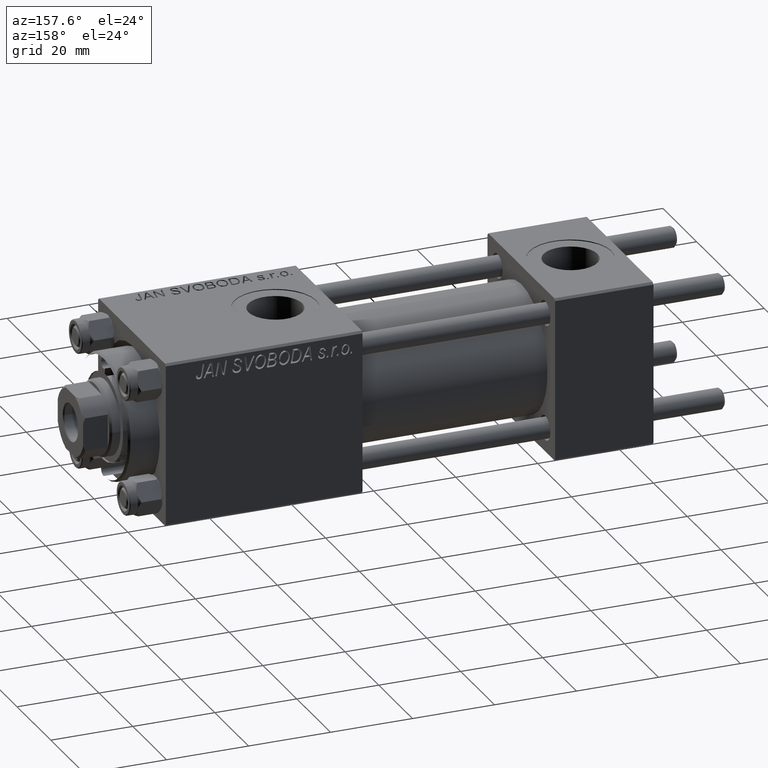
[diagram: clean part render]
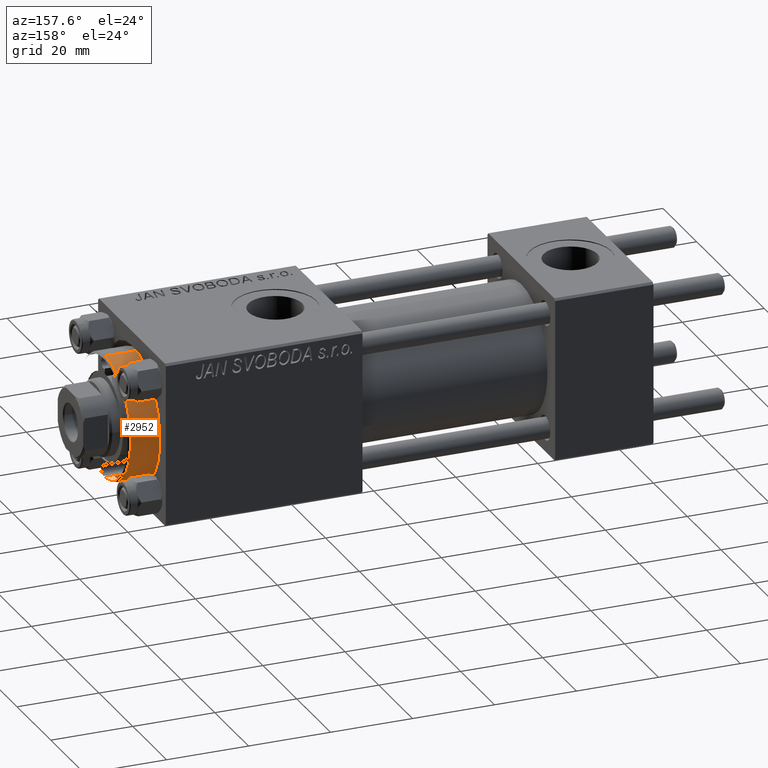
[diagram: same view with one face highlighted and labeled with its STEP entity id]
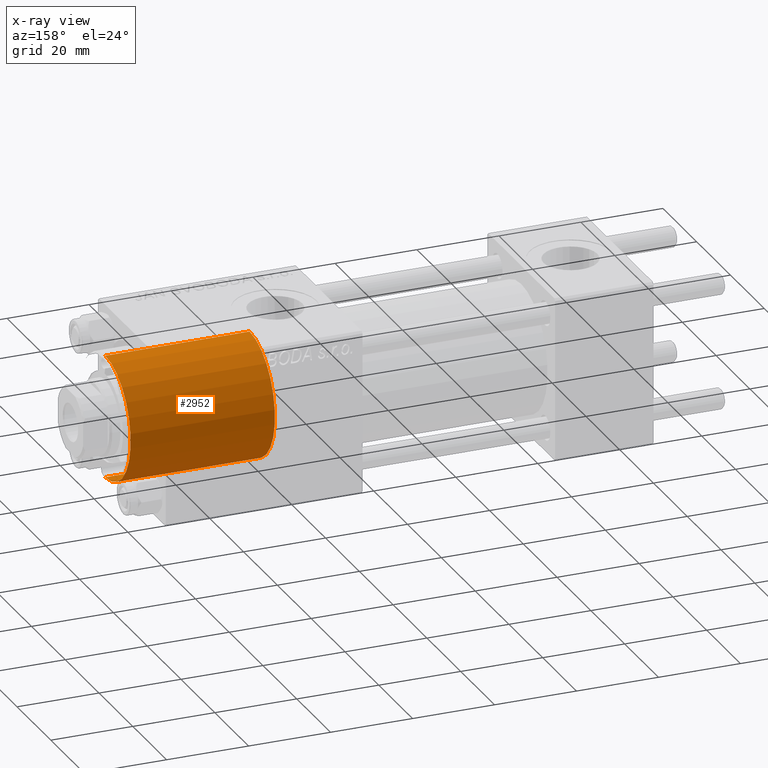
[diagram: x-ray of the same camera — body ghosted, the highlighted face saturated]
A machine part, auxiliary view. The second image highlights one B-rep face of the part: STEP entity #2952.
The next image is the same camera in x-ray: the body ghosted, the highlighted face saturated — about 0% of this face is hidden behind the body in this view.
In plain terms, the highlighted cylindrical surface (partial cylindrical patch) has radius 15 mm, axis along (-1, -0, 0).
Its self-contained STEP definition (entity closure, byte-faithful):
#2800 = DIRECTION ( 'NONE',  ( -1.000000000000000000, 0.000000000000000000, 0.000000000000000000 ) ) ;
#2944 = VERTEX_POINT ( 'NONE', #31485 ) ;
#2952 = ADVANCED_FACE ( 'NONE', ( #27311 ), #47373, .T. ) ;
#3740 = EDGE_CURVE ( 'NONE', #2944, #26713, #8091, .T. ) ;
#3931 = CARTESIAN_POINT ( 'NONE',  ( 0.000000000000000000, 0.000000000000000000, 0.000000000000000000 ) ) ;
#8091 = LINE ( 'NONE', #43775, #16235 ) ;
#8124 = CARTESIAN_POINT ( 'NONE',  ( 0.000000000000000000, 0.000000000000000000, 35.19999999999999574 ) ) ;
#9299 = CIRCLE ( 'NONE', #24181, 15.00000000000000000 ) ;
#9352 = VERTEX_POINT ( 'NONE', #33167 ) ;
#9881 = VERTEX_POINT ( 'NONE', #12169 ) ;
#12169 = CARTESIAN_POINT ( 'NONE',  ( -15.00000000000000000, 0.000000000000000000, 0.000000000000000000 ) ) ;
#12290 = DIRECTION ( 'NONE',  ( 0.000000000000000000, 0.000000000000000000, -1.000000000000000000 ) ) ;
#13123 = DIRECTION ( 'NONE',  ( -0.000000000000000000, -0.000000000000000000, -1.000000000000000000 ) ) ;
#13944 = CARTESIAN_POINT ( 'NONE',  ( 15.00000000000000000, 1.836970198721029589E-15, 0.000000000000000000 ) ) ;
#14932 = EDGE_CURVE ( 'NONE', #9352, #9881, #33436, .T. ) ;
#15059 = CARTESIAN_POINT ( 'NONE',  ( 0.000000000000000000, 0.000000000000000000, 28.69999999999999929 ) ) ;
#15394 = EDGE_LOOP ( 'NONE', ( #41610, #47285, #48890, #38115 ) ) ;
#16235 = VECTOR ( 'NONE', #48209, 1000.000000000000000 ) ;
#21395 = CIRCLE ( 'NONE', #50548, 15.00000000000000000 ) ;
#23235 = DIRECTION ( 'NONE',  ( 1.000000000000000000, 0.000000000000000000, 0.000000000000000000 ) ) ;
#23951 = EDGE_CURVE ( 'NONE', #9352, #2944, #21395, .T. ) ;
#24181 = AXIS2_PLACEMENT_3D ( 'NONE', #3931, #43791, #34503 ) ;
#26713 = VERTEX_POINT ( 'NONE', #13944 ) ;
#27311 = FACE_OUTER_BOUND ( 'NONE', #15394, .T. ) ;
#28691 = AXIS2_PLACEMENT_3D ( 'NONE', #15059, #47632, #2800 ) ;
#29265 = CARTESIAN_POINT ( 'NONE',  ( -15.00000000000000000, 0.000000000000000000, 28.69999999999999929 ) ) ;
#31485 = CARTESIAN_POINT ( 'NONE',  ( 15.00000000000000000, 1.836970198721029589E-15, 35.19999999999999574 ) ) ;
#33167 = CARTESIAN_POINT ( 'NONE',  ( -15.00000000000000000, 0.000000000000000000, 35.19999999999999574 ) ) ;
#33436 = LINE ( 'NONE', #29265, #35289 ) ;
#34503 = DIRECTION ( 'NONE',  ( 1.000000000000000000, 0.000000000000000000, 0.000000000000000000 ) ) ;
#35289 = VECTOR ( 'NONE', #13123, 1000.000000000000000 ) ;
#38115 = ORIENTED_EDGE ( 'NONE', *, *, #14932, .F. ) ;
#39043 = EDGE_CURVE ( 'NONE', #26713, #9881, #9299, .T. ) ;
#41610 = ORIENTED_EDGE ( 'NONE', *, *, #23951, .T. ) ;
#43775 = CARTESIAN_POINT ( 'NONE',  ( 15.00000000000000000, 1.836970198721029589E-15, 28.69999999999999929 ) ) ;
#43791 = DIRECTION ( 'NONE',  ( 0.000000000000000000, 0.000000000000000000, 1.000000000000000000 ) ) ;
#47285 = ORIENTED_EDGE ( 'NONE', *, *, #3740, .T. ) ;
#47373 = CYLINDRICAL_SURFACE ( 'NONE', #28691, 15.00000000000000000 ) ;
#47632 = DIRECTION ( 'NONE',  ( -0.000000000000000000, -0.000000000000000000, -1.000000000000000000 ) ) ;
#48209 = DIRECTION ( 'NONE',  ( -0.000000000000000000, -0.000000000000000000, -1.000000000000000000 ) ) ;
#48890 = ORIENTED_EDGE ( 'NONE', *, *, #39043, .T. ) ;
#50548 = AXIS2_PLACEMENT_3D ( 'NONE', #8124, #12290, #23235 ) ;